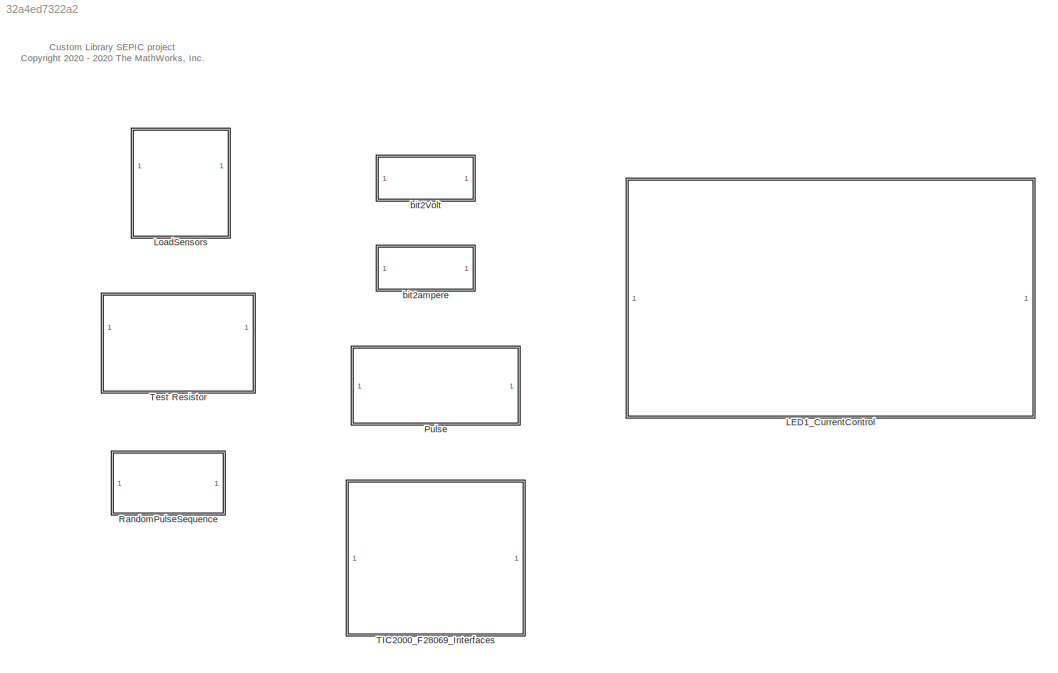
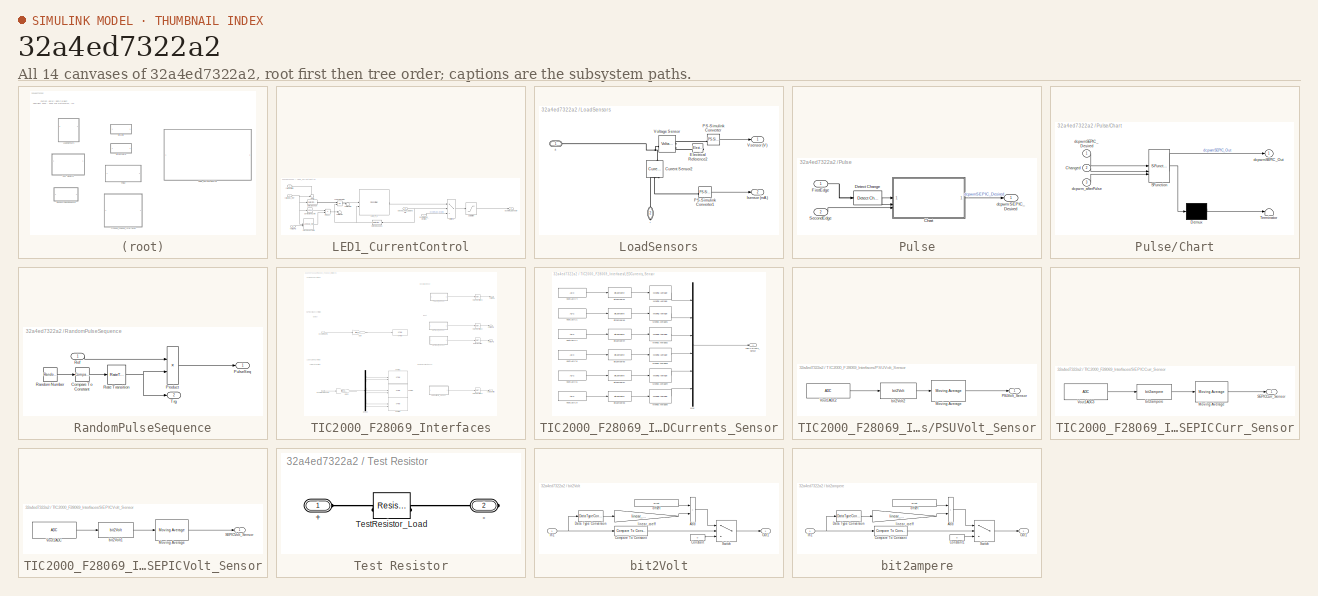
[diagram: thumbnail index - all 14 canvases of the model, root first then tree order]
MODEL slx_32a4ed7322a2
KIND library
CONFIG AbsTol = auto
CONFIG EnableMultiTasking = off
CONFIG FixedStep = auto
CONFIG MaxStep = auto
CONFIG MinStep = auto
CONFIG RelTol = 1e-3
CONFIG SampleTimeConstraint = Unconstrained
CONFIG SolverName = VariableStepAuto
CONFIG StartTime = 0.0
CONFIG StopTime = 10.0
BLOCK [SubSystem] LED1_CurrentControl
BLOCK [Lookup_n-D] LED1_CurrentControl/2-D Lookup Table
  BreakpointsForDimension1 = CurrCtrlr_IC_CurrBrkpnt
  BreakpointsForDimension2 = CurrCtrlr_IC_VoltBrkpnt
  Commented = on
  ExtrapMethod = Clip
  InputPortMap = u0,u1
  InternalRulePriority = Speed
  RndMeth = Simplest
  Table = CurrCtrlr_IC_Table
BLOCK [Reference] LED1_CurrentControl/Compare To Zero  REF=simulink/Logic and Bit
Operations/Compare
To Zero
  Commented = on
  SourceBlock = simulink/Logic and Bit\nOperations/Compare\nTo Zero
  SourceType = Compare To Zero
BLOCK [Reference] LED1_CurrentControl/Detect Change  REF=simulink/Logic and Bit
Operations/Detect
Change
  Commented = on
  SourceBlock = simulink/Logic and Bit\nOperations/Detect\nChange
  SourceType = Detect Change
BLOCK [Reference] LED1_CurrentControl/Detect Change1  REF=simulink/Logic and Bit
Operations/Detect
Change
  Commented = through
  SourceBlock = simulink/Logic and Bit\nOperations/Detect\nChange
  SourceType = Detect Change
BLOCK [Reference] LED1_CurrentControl/LED_PI_1  REF=slpidlib/PID Controller
  SourceBlock = slpidlib/PID Controller
  SourceType = PID 1dof
BLOCK [Logic] LED1_CurrentControl/Logical Operator
  AllPortsSameDT = off
  Commented = on
  Operator = OR
  OutDataTypeStr = boolean
BLOCK [Product] LED1_CurrentControl/Product
  Commented = on
BLOCK [Saturate] LED1_CurrentControl/Saturation
  AttributesFormatString = %<UpperLimit>\n%<LowerLimit>
  LowerLimit = 0
  UpperLimit = dcpwmLEDMax
BLOCK [Sum] LED1_CurrentControl/Sum
  Inputs = -+|
BLOCK [Switch] LED1_CurrentControl/Switch1
  Criteria = u2 > Threshold
  InputSameDT = off
  SaturateOnIntegerOverflow = off
BLOCK [Terminator] LED1_CurrentControl/Terminator
  Commented = on
BLOCK [Terminator] LED1_CurrentControl/Terminator1
  Commented = on
BLOCK [Inport] LED1_CurrentControl/closedLoopLEDEnable
  OutDataTypeStr = boolean
  Port = 3
  PortDimensions = 1
  SamplingMode = Sample based
  SignalType = real
  Unit = 1
BLOCK [Inport] LED1_CurrentControl/currLEDs_Ref
  OutDataTypeStr = single
  PortDimensions = [1 1]
  SamplingMode = Sample based
  SignalType = real
  Unit = mA
BLOCK [Inport] LED1_CurrentControl/currLEDstrips
  OutDataTypeStr = single
  Port = 2
  PortDimensions = [1 1]
  SamplingMode = Sample based
  SignalType = real
  Unit = mA
BLOCK [Inport] LED1_CurrentControl/dcpwmLED_Desired
  OutDataTypeStr = single
  Port = 4
  PortDimensions = [1 1]
  SamplingMode = Sample based
  SignalType = real
  Unit = 1
BLOCK [Outport] LED1_CurrentControl/dcpwmLEDvector
  OutDataTypeStr = single
  PortDimensions = 1
  SamplingMode = Sample based
  SignalType = real
  VectorParamsAs1DForOutWhenUnconnected = off
BLOCK [Inport] LED1_CurrentControl/voltSEPIC
  OutDataTypeStr = single
  Port = 5
  PortDimensions = 1
  SamplingMode = Sample based
  SignalType = real
  Unit = V
BLOCK [SubSystem] LoadSensors
BLOCK [PMIOPort] LoadSensors/+
  Side = Left
BLOCK [PMIOPort] LoadSensors/-
  NameLocation = left
  Port = 2
  Side = Right
BLOCK [Reference] LoadSensors/Current Sensor2  REF=fl_lib/Electrical/Electrical Sensors/Current Sensor
  NameLocation = left
  SourceBlock = fl_lib/Electrical/Electrical Sensors/Current Sensor
  SourceType = Current Sensor
BLOCK [Reference] LoadSensors/Electrical Reference2  REF=fl_lib/Electrical/Electrical Elements/Electrical Reference
  NameLocation = top
  SourceBlock = fl_lib/Electrical/Electrical Elements/Electrical Reference
  SourceType = Electrical Reference
BLOCK [Outport] LoadSensors/Isensor (mA)
  Port = 2
  Unit = mA
  VectorParamsAs1DForOutWhenUnconnected = off
BLOCK [Reference] LoadSensors/PS-Simulink Converter  REF=nesl_utility/PS-Simulink
Converter
  SourceBlock = nesl_utility/PS-Simulink\nConverter
  SourceType = PS-Simulink\nConverter
BLOCK [Reference] LoadSensors/PS-Simulink Converter1  REF=nesl_utility/PS-Simulink
Converter
  SourceBlock = nesl_utility/PS-Simulink\nConverter
  SourceType = PS-Simulink\nConverter
BLOCK [Reference] LoadSensors/Voltage Sensor  REF=fl_lib/Electrical/Electrical Sensors/Voltage Sensor
  SourceBlock = fl_lib/Electrical/Electrical Sensors/Voltage Sensor
  SourceType = Voltage Sensor
BLOCK [Outport] LoadSensors/Vsensor (V)
  Unit = V
  VectorParamsAs1DForOutWhenUnconnected = off
BLOCK [SubSystem] Pulse
BLOCK [SubSystem] Pulse/Chart
  BlockKeywords = __PRM__SERIALIZED__DATA__:Stateflow Chart,Stateflow Diagram
  ErrorFcn = Stateflow.Translate.translate
  PermitHierarchicalResolution = ExplicitOnly
  SFBlockType = Chart
  TreatAsAtomicUnit = on
BLOCK [Demux] Pulse/Chart/ Demux 
  Outputs = 1
BLOCK [S-Function] Pulse/Chart/ SFunction 
  EnableBusSupport = off
  FunctionName = sf_sfun
  Parameters = pulseDuration
  PortCounts = [3 2]
  SFcnIsStateOwnerBlock = off
  SFunctionDeploymentMode = off
  Tag = Stateflow S-Function 3
BLOCK [Terminator] Pulse/Chart/ Terminator 
BLOCK [Inport] Pulse/Chart/Changed
  Port = 2
BLOCK [Inport] Pulse/Chart/dcpwmSEPIC_Desired
BLOCK [Outport] Pulse/Chart/dcpwmSEPIC_Out
BLOCK [Inport] Pulse/Chart/dcpwm_afterPulse
  Port = 3
BLOCK [Reference] Pulse/Detect Change  REF=simulink/Logic and Bit
Operations/Detect
Change
  SourceBlock = simulink/Logic and Bit\nOperations/Detect\nChange
  SourceType = Detect Change
BLOCK [Inport] Pulse/FirstEdge
BLOCK [Inport] Pulse/SecondEdge
  Port = 2
BLOCK [Outport] Pulse/dcpwmSEPIC_Desired
BLOCK [SubSystem] RandomPulseSequence
BLOCK [Reference] RandomPulseSequence/Compare To Constant  REF=simulink/Logic and Bit
Operations/Compare
To Constant
  SourceBlock = simulink/Logic and Bit\nOperations/Compare\nTo Constant
  SourceType = Compare To Constant
BLOCK [Product] RandomPulseSequence/Product
BLOCK [Outport] RandomPulseSequence/PulseSeq
BLOCK [RandomNumber] RandomPulseSequence/Random Number
  Mean = 0.5
  SampleTime = sampleTime
  Seed = seed
BLOCK [RateTransition] RandomPulseSequence/Rate Transition
BLOCK [Inport] RandomPulseSequence/Ref
BLOCK [Outport] RandomPulseSequence/Trg
  Port = 2
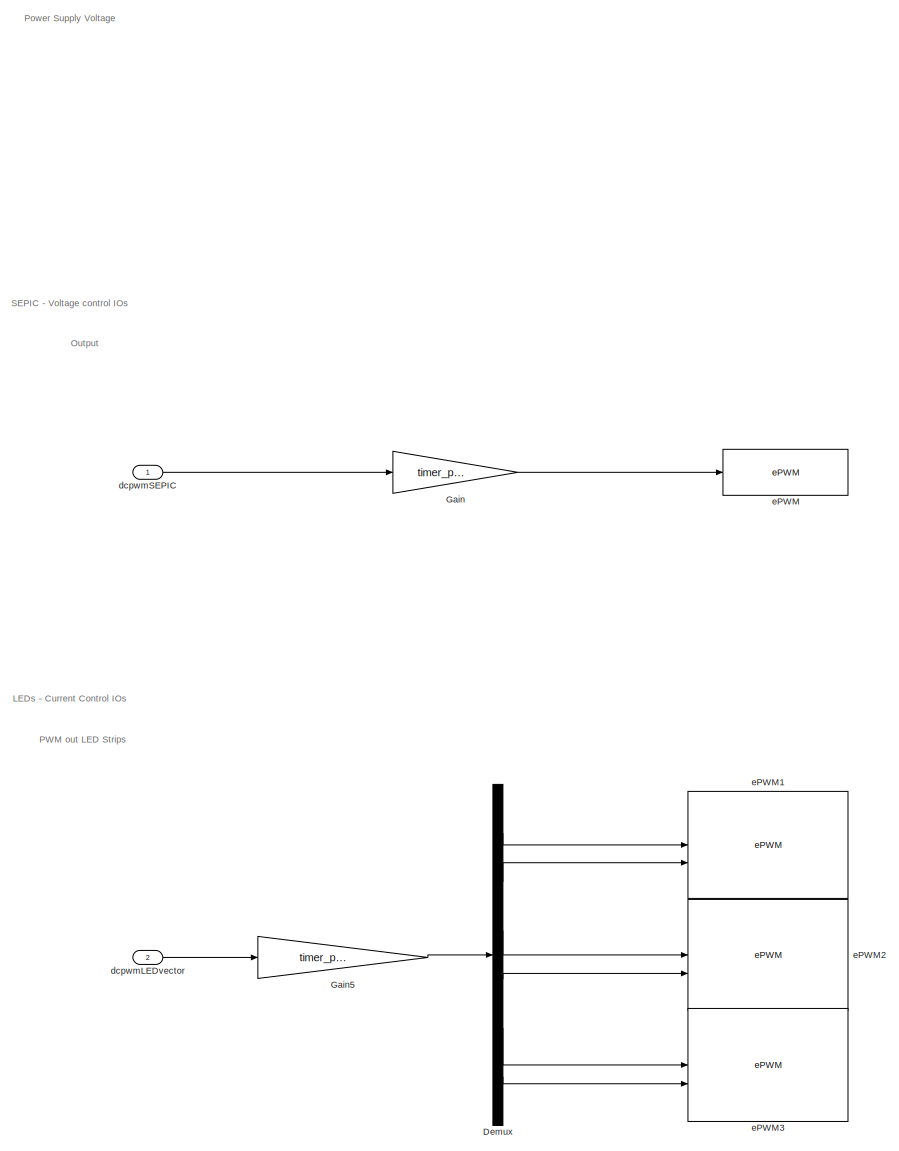
[diagram: TIC2000_F28069_Interfaces - part 1/2, left side, full height]
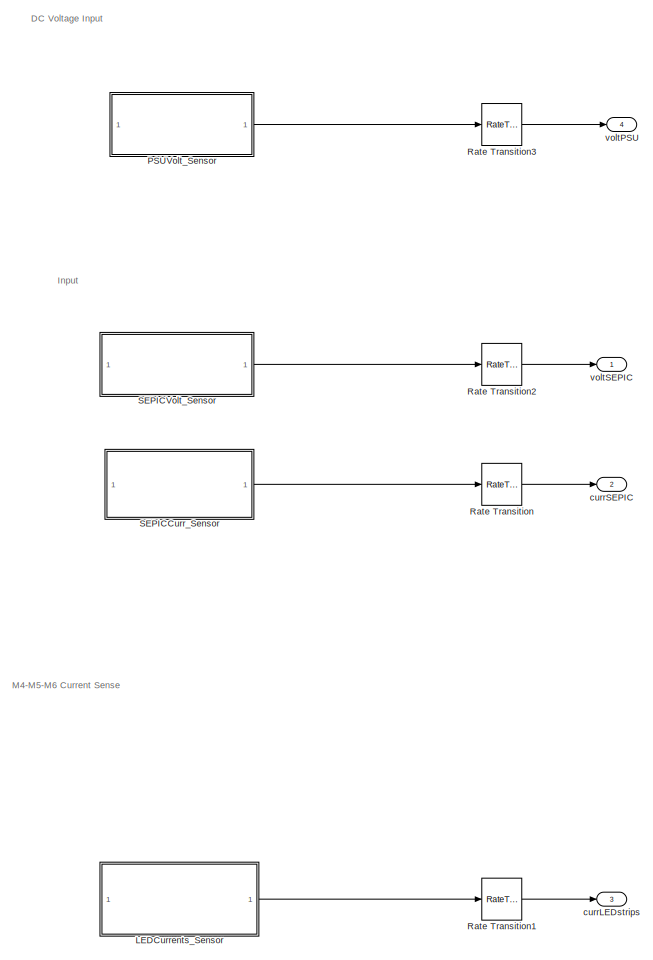
[diagram: TIC2000_F28069_Interfaces - part 2/2, right side, full height]
BLOCK [SubSystem] TIC2000_F28069_Interfaces
  SystemSampleTime = ts500us
  VariantControl = Var_Plant==1
BLOCK [Demux] TIC2000_F28069_Interfaces/Demux
  Outputs = 6
BLOCK [Gain] TIC2000_F28069_Interfaces/Gain
  Gain = timer_period_SEPIC
  OutDataTypeStr = int16
  OutMax = 70
  OutMin = 0
  RndMeth = Simplest
BLOCK [Gain] TIC2000_F28069_Interfaces/Gain5
  Gain = timer_period_LED
  OutDataTypeStr = int16
  ParamDataTypeStr = int16
  RndMeth = Simplest
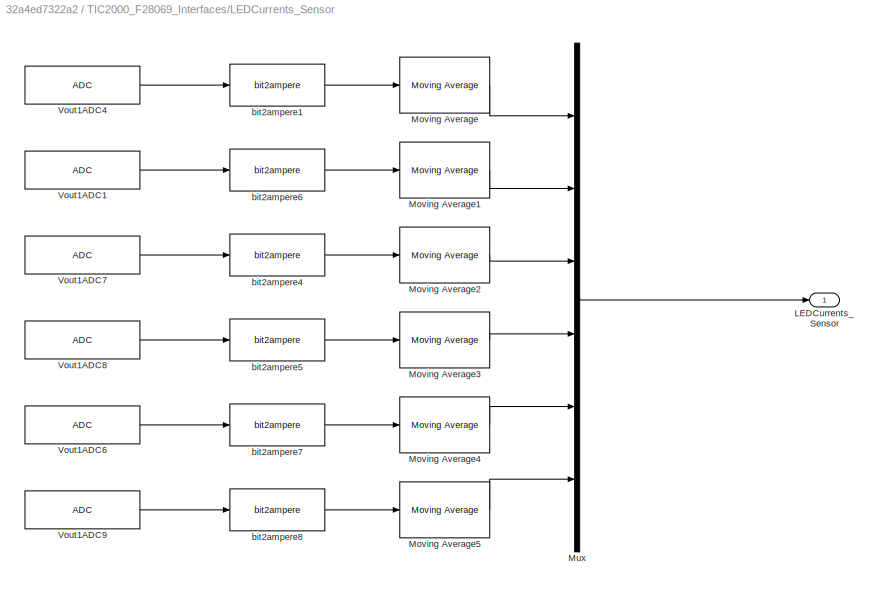
BLOCK [SubSystem] TIC2000_F28069_Interfaces/LEDCurrents_Sensor
  SystemSampleTime = ts500us
  TreatAsAtomicUnit = on
BLOCK [Outport] TIC2000_F28069_Interfaces/LEDCurrents_Sensor/LEDCurrents_Sensor
BLOCK [Reference] TIC2000_F28069_Interfaces/LEDCurrents_Sensor/Moving Average  REF=dspstat3/Moving
Average
  SourceBlock = dspstat3/Moving\nAverage
  SourceType = dsp.simulink.MovingAverage
BLOCK [Reference] TIC2000_F28069_Interfaces/LEDCurrents_Sensor/Moving Average1  REF=dspstat3/Moving
Average
  SourceBlock = dspstat3/Moving\nAverage
  SourceType = dsp.simulink.MovingAverage
BLOCK [Reference] TIC2000_F28069_Interfaces/LEDCurrents_Sensor/Moving Average2  REF=dspstat3/Moving
Average
  SourceBlock = dspstat3/Moving\nAverage
  SourceType = dsp.simulink.MovingAverage
BLOCK [Reference] TIC2000_F28069_Interfaces/LEDCurrents_Sensor/Moving Average3  REF=dspstat3/Moving
Average
  SourceBlock = dspstat3/Moving\nAverage
  SourceType = dsp.simulink.MovingAverage
BLOCK [Reference] TIC2000_F28069_Interfaces/LEDCurrents_Sensor/Moving Average4  REF=dspstat3/Moving
Average
  SourceBlock = dspstat3/Moving\nAverage
  SourceType = dsp.simulink.MovingAverage
BLOCK [Reference] TIC2000_F28069_Interfaces/LEDCurrents_Sensor/Moving Average5  REF=dspstat3/Moving
Average
  SourceBlock = dspstat3/Moving\nAverage
  SourceType = dsp.simulink.MovingAverage
BLOCK [Mux] TIC2000_F28069_Interfaces/LEDCurrents_Sensor/Mux
  DisplayOption = bar
  Inputs = 6
BLOCK [Reference] TIC2000_F28069_Interfaces/LEDCurrents_Sensor/Vout1ADC1  REF=c2802xlib/ADC
  SourceBlock = c2802xlib/ADC
  SourceType = ADC Type 3-5
  UserDataPersistent = on
BLOCK [Reference] TIC2000_F28069_Interfaces/LEDCurrents_Sensor/Vout1ADC4  REF=c2802xlib/ADC
  SourceBlock = c2802xlib/ADC
  SourceType = ADC Type 3-5
  UserDataPersistent = on
BLOCK [Reference] TIC2000_F28069_Interfaces/LEDCurrents_Sensor/Vout1ADC6  REF=c2802xlib/ADC
  SourceBlock = c2802xlib/ADC
  SourceType = ADC Type 3-5
  UserDataPersistent = on
BLOCK [Reference] TIC2000_F28069_Interfaces/LEDCurrents_Sensor/Vout1ADC7  REF=c2802xlib/ADC
  SourceBlock = c2802xlib/ADC
  SourceType = ADC Type 3-5
  UserDataPersistent = on
BLOCK [Reference] TIC2000_F28069_Interfaces/LEDCurrents_Sensor/Vout1ADC8  REF=c2802xlib/ADC
  SourceBlock = c2802xlib/ADC
  SourceType = ADC Type 3-5
  UserDataPersistent = on
BLOCK [Reference] TIC2000_F28069_Interfaces/LEDCurrents_Sensor/Vout1ADC9  REF=c2802xlib/ADC
  SourceBlock = c2802xlib/ADC
  SourceType = ADC Type 3-5
  UserDataPersistent = on
BLOCK [Reference] TIC2000_F28069_Interfaces/LEDCurrents_Sensor/bit2ampere1  REF=$bdroot/bit2ampere
  SourceBlock = $bdroot/bit2ampere
  SourceType = ADC Conversion utility
BLOCK [Reference] TIC2000_F28069_Interfaces/LEDCurrents_Sensor/bit2ampere4  REF=$bdroot/bit2ampere
  SourceBlock = $bdroot/bit2ampere
  SourceType = ADC Conversion utility
BLOCK [Reference] TIC2000_F28069_Interfaces/LEDCurrents_Sensor/bit2ampere5  REF=$bdroot/bit2ampere
  SourceBlock = $bdroot/bit2ampere
  SourceType = ADC Conversion utility
BLOCK [Reference] TIC2000_F28069_Interfaces/LEDCurrents_Sensor/bit2ampere6  REF=$bdroot/bit2ampere
  SourceBlock = $bdroot/bit2ampere
  SourceType = ADC Conversion utility
BLOCK [Reference] TIC2000_F28069_Interfaces/LEDCurrents_Sensor/bit2ampere7  REF=$bdroot/bit2ampere
  SourceBlock = $bdroot/bit2ampere
  SourceType = ADC Conversion utility
BLOCK [Reference] TIC2000_F28069_Interfaces/LEDCurrents_Sensor/bit2ampere8  REF=$bdroot/bit2ampere
  SourceBlock = $bdroot/bit2ampere
  SourceType = ADC Conversion utility
BLOCK [SubSystem] TIC2000_F28069_Interfaces/PSUVolt_Sensor
  SystemSampleTime = ts100ms
  TreatAsAtomicUnit = on
BLOCK [Reference] TIC2000_F28069_Interfaces/PSUVolt_Sensor/Moving Average  REF=dspstat3/Moving
Average
  SourceBlock = dspstat3/Moving\nAverage
  SourceType = dsp.simulink.MovingAverage
BLOCK [Outport] TIC2000_F28069_Interfaces/PSUVolt_Sensor/PSUVolt_Sensor
BLOCK [Reference] TIC2000_F28069_Interfaces/PSUVolt_Sensor/Vout1ADC2  REF=c2802xlib/ADC
  SourceBlock = c2802xlib/ADC
  SourceType = ADC Type 3-5
  UserDataPersistent = on
BLOCK [Reference] TIC2000_F28069_Interfaces/PSUVolt_Sensor/bit2Volt2  REF=$bdroot/bit2Volt
  SourceBlock = $bdroot/bit2Volt
  SourceType = ADC Conversion utility
BLOCK [RateTransition] TIC2000_F28069_Interfaces/Rate Transition
  Deterministic = off
BLOCK [RateTransition] TIC2000_F28069_Interfaces/Rate Transition1
  Deterministic = off
BLOCK [RateTransition] TIC2000_F28069_Interfaces/Rate Transition2
  Deterministic = off
BLOCK [RateTransition] TIC2000_F28069_Interfaces/Rate Transition3
  Deterministic = off
BLOCK [SubSystem] TIC2000_F28069_Interfaces/SEPICCurr_Sensor
  SystemSampleTime = ts10ms
  TreatAsAtomicUnit = on
BLOCK [Reference] TIC2000_F28069_Interfaces/SEPICCurr_Sensor/Moving Average  REF=dspstat3/Moving
Average
  SourceBlock = dspstat3/Moving\nAverage
  SourceType = dsp.simulink.MovingAverage
BLOCK [Outport] TIC2000_F28069_Interfaces/SEPICCurr_Sensor/SEPICCurr_Sensor
BLOCK [Reference] TIC2000_F28069_Interfaces/SEPICCurr_Sensor/Vout1ADC3  REF=c2802xlib/ADC
  SourceBlock = c2802xlib/ADC
  SourceType = ADC Type 3-5
  UserDataPersistent = on
BLOCK [Reference] TIC2000_F28069_Interfaces/SEPICCurr_Sensor/bit2ampere  REF=$bdroot/bit2ampere
  SourceBlock = $bdroot/bit2ampere
  SourceType = ADC Conversion utility
BLOCK [SubSystem] TIC2000_F28069_Interfaces/SEPICVolt_Sensor
  SystemSampleTime = ts500us
  TreatAsAtomicUnit = on
BLOCK [Reference] TIC2000_F28069_Interfaces/SEPICVolt_Sensor/Moving Average  REF=dspstat3/Moving
Average
  SourceBlock = dspstat3/Moving\nAverage
  SourceType = dsp.simulink.MovingAverage
BLOCK [Outport] TIC2000_F28069_Interfaces/SEPICVolt_Sensor/SEPICVolt_Sensor
BLOCK [Reference] TIC2000_F28069_Interfaces/SEPICVolt_Sensor/Vout1ADC  REF=c2802xlib/ADC
  SourceBlock = c2802xlib/ADC
  SourceType = ADC Type 3-5
  UserDataPersistent = on
BLOCK [Reference] TIC2000_F28069_Interfaces/SEPICVolt_Sensor/bit2Volt1  REF=$bdroot/bit2Volt
  SourceBlock = $bdroot/bit2Volt
  SourceType = ADC Conversion utility
BLOCK [Outport] TIC2000_F28069_Interfaces/currLEDstrips
  OutDataTypeStr = single
  Port = 3
  PortDimensions = 6
  Unit = mA
BLOCK [Outport] TIC2000_F28069_Interfaces/currSEPIC
  Port = 2
  Unit = mA
  VectorParamsAs1DForOutWhenUnconnected = off
BLOCK [Inport] TIC2000_F28069_Interfaces/dcpwmLEDvector
  Port = 2
  Unit = 1
BLOCK [Inport] TIC2000_F28069_Interfaces/dcpwmSEPIC
  Unit = 1
BLOCK [Reference] TIC2000_F28069_Interfaces/ePWM  REF=c2802xlib/ePWM
  SourceBlock = c2802xlib/ePWM
  SourceType = ePWM Type 1-4
BLOCK [Reference] TIC2000_F28069_Interfaces/ePWM1  REF=c2802xlib/ePWM
  SourceBlock = c2802xlib/ePWM
  SourceType = ePWM Type 1-4
BLOCK [Reference] TIC2000_F28069_Interfaces/ePWM2  REF=c2802xlib/ePWM
  SourceBlock = c2802xlib/ePWM
  SourceType = ePWM Type 1-4
BLOCK [Reference] TIC2000_F28069_Interfaces/ePWM3  REF=c2802xlib/ePWM
  SourceBlock = c2802xlib/ePWM
  SourceType = ePWM Type 1-4
BLOCK [Outport] TIC2000_F28069_Interfaces/voltPSU
  Port = 4
  Unit = V
  VectorParamsAs1DForOutWhenUnconnected = off
BLOCK [Outport] TIC2000_F28069_Interfaces/voltSEPIC
  Unit = V
  VectorParamsAs1DForOutWhenUnconnected = off
BLOCK [SubSystem] Test Resistor
  VariantControl = Resistor
BLOCK [PMIOPort] Test Resistor/+
  Side = Left
BLOCK [PMIOPort] Test Resistor/-
  Port = 2
  Side = Right
BLOCK [Reference] Test Resistor/TestResistor_Load  REF=ee_lib/Passive/Resistor
  SourceBlock = ee_lib/Passive/Resistor
  SourceType = Resistor
BLOCK [SubSystem] bit2Volt
BLOCK [Sum] bit2Volt/Add
  IconShape = rectangular
BLOCK [Reference] bit2Volt/Compare To Constant  REF=simulink/Logic and Bit
Operations/Compare
To Constant
  SourceBlock = simulink/Logic and Bit\nOperations/Compare\nTo Constant
  SourceType = Compare To Constant
BLOCK [Constant] bit2Volt/Constant
  OutDataTypeStr = single
  Value = 0
BLOCK [DataTypeConversion] bit2Volt/Data Type Conversion
  OutDataTypeStr = single
  RndMeth = Floor
  SaturateOnIntegerOverflow = off
BLOCK [Inport] bit2Volt/In1
BLOCK [Outport] bit2Volt/Out1
BLOCK [Switch] bit2Volt/Switch
  Criteria = u2 > Threshold
  InputSameDT = off
  SaturateOnIntegerOverflow = off
BLOCK [Gain] bit2Volt/linear_coeff
  Gain = linear_coeff
BLOCK [Constant] bit2Volt/offset
  OutDataTypeStr = single
  Value = offset
BLOCK [SubSystem] bit2ampere
BLOCK [Sum] bit2ampere/Add
  IconShape = rectangular
BLOCK [Reference] bit2ampere/Compare To Constant  REF=simulink/Logic and Bit
Operations/Compare
To Constant
  SourceBlock = simulink/Logic and Bit\nOperations/Compare\nTo Constant
  SourceType = Compare To Constant
BLOCK [Constant] bit2ampere/Constant1
  OutDataTypeStr = single
  Value = 0
BLOCK [DataTypeConversion] bit2ampere/Data Type Conversion
  OutDataTypeStr = single
  RndMeth = Floor
  SaturateOnIntegerOverflow = off
BLOCK [Inport] bit2ampere/In1
BLOCK [Outport] bit2ampere/Out1
BLOCK [Switch] bit2ampere/Switch
  Criteria = u2 > Threshold
  InputSameDT = off
  SaturateOnIntegerOverflow = off
BLOCK [Gain] bit2ampere/linear_coeff
  Gain = linear_coeff
BLOCK [Constant] bit2ampere/offset
  OutDataTypeStr = single
  Value = offset
ANNOTATION (root): Custom Library SEPIC project <copyright redacted>
ANNOTATION TIC2000_F28069_Interfaces: DC Voltage Input
ANNOTATION TIC2000_F28069_Interfaces: Input
ANNOTATION TIC2000_F28069_Interfaces: LEDs - Current Control IOs
ANNOTATION TIC2000_F28069_Interfaces: M4-M5-M6 Current Sense
ANNOTATION TIC2000_F28069_Interfaces: Output
ANNOTATION TIC2000_F28069_Interfaces: PWM out LED Strips
ANNOTATION TIC2000_F28069_Interfaces: Power Supply Voltage
ANNOTATION TIC2000_F28069_Interfaces: SEPIC - Voltage control IOs
LINE LED1_CurrentControl/2-D Lookup Table:1 -> LED1_CurrentControl/Product:2
LINE LED1_CurrentControl/Compare To Zero:1 -> LED1_CurrentControl/Product:1
NET LED1_CurrentControl/Detect Change1:1 -> LED1_CurrentControl/LED_PI_1:2, LED1_CurrentControl/Logical Operator:2
LINE LED1_CurrentControl/Detect Change:1 -> LED1_CurrentControl/Logical Operator:1
LINE LED1_CurrentControl/LED_PI_1:1 -> LED1_CurrentControl/Switch1:1
LINE LED1_CurrentControl/Logical Operator:1 -> LED1_CurrentControl/Terminator1:1
LINE LED1_CurrentControl/Product:1 -> LED1_CurrentControl/Terminator:1
LINE LED1_CurrentControl/Saturation:1 -> LED1_CurrentControl/dcpwmLEDvector:1
LINE LED1_CurrentControl/Sum:1 -> LED1_CurrentControl/LED_PI_1:1
LINE LED1_CurrentControl/Switch1:1 -> LED1_CurrentControl/Saturation:1
NET LED1_CurrentControl/closedLoopLEDEnable:1 -> LED1_CurrentControl/Detect Change1:1, LED1_CurrentControl/Switch1:2
NET LED1_CurrentControl/currLEDs_Ref:1 -> LED1_CurrentControl/2-D Lookup Table:1, LED1_CurrentControl/Compare To Zero:1, LED1_CurrentControl/Detect Change:1, LED1_CurrentControl/Sum:2
LINE LED1_CurrentControl/currLEDstrips:1 -> LED1_CurrentControl/Sum:1
LINE LED1_CurrentControl/dcpwmLED_Desired:1 -> LED1_CurrentControl/Switch1:3
LINE LED1_CurrentControl/voltSEPIC:1 -> LED1_CurrentControl/2-D Lookup Table:2
LINE LoadSensors/PS-Simulink Converter1:1 -> LoadSensors/Isensor (mA):1
LINE LoadSensors/PS-Simulink Converter:1 -> LoadSensors/Vsensor (V):1
LINE Pulse/Chart:1 -> Pulse/dcpwmSEPIC_Desired:1
LINE Pulse/Detect Change:1 -> Pulse/Chart:2
NET Pulse/FirstEdge:1 -> Pulse/Chart:1, Pulse/Detect Change:1
LINE Pulse/SecondEdge:1 -> Pulse/Chart:3
LINE RandomPulseSequence/Compare To Constant:1 -> RandomPulseSequence/Rate Transition:1
LINE RandomPulseSequence/Product:1 -> RandomPulseSequence/PulseSeq:1
LINE RandomPulseSequence/Random Number:1 -> RandomPulseSequence/Compare To Constant:1
NET RandomPulseSequence/Rate Transition:1 -> RandomPulseSequence/Product:2, RandomPulseSequence/Trg:1
LINE RandomPulseSequence/Ref:1 -> RandomPulseSequence/Product:1
LINE TIC2000_F28069_Interfaces/Demux:1 -> TIC2000_F28069_Interfaces/ePWM1:1
LINE TIC2000_F28069_Interfaces/Demux:2 -> TIC2000_F28069_Interfaces/ePWM1:2
LINE TIC2000_F28069_Interfaces/Demux:3 -> TIC2000_F28069_Interfaces/ePWM2:1
LINE TIC2000_F28069_Interfaces/Demux:4 -> TIC2000_F28069_Interfaces/ePWM2:2
LINE TIC2000_F28069_Interfaces/Demux:5 -> TIC2000_F28069_Interfaces/ePWM3:1
LINE TIC2000_F28069_Interfaces/Demux:6 -> TIC2000_F28069_Interfaces/ePWM3:2
LINE TIC2000_F28069_Interfaces/Gain5:1 -> TIC2000_F28069_Interfaces/Demux:1
LINE TIC2000_F28069_Interfaces/Gain:1 -> TIC2000_F28069_Interfaces/ePWM:1
LINE TIC2000_F28069_Interfaces/LEDCurrents_Sensor/Moving Average1:1 -> TIC2000_F28069_Interfaces/LEDCurrents_Sensor/Mux:2
LINE TIC2000_F28069_Interfaces/LEDCurrents_Sensor/Moving Average2:1 -> TIC2000_F28069_Interfaces/LEDCurrents_Sensor/Mux:3
LINE TIC2000_F28069_Interfaces/LEDCurrents_Sensor/Moving Average3:1 -> TIC2000_F28069_Interfaces/LEDCurrents_Sensor/Mux:4
LINE TIC2000_F28069_Interfaces/LEDCurrents_Sensor/Moving Average4:1 -> TIC2000_F28069_Interfaces/LEDCurrents_Sensor/Mux:5
LINE TIC2000_F28069_Interfaces/LEDCurrents_Sensor/Moving Average5:1 -> TIC2000_F28069_Interfaces/LEDCurrents_Sensor/Mux:6
LINE TIC2000_F28069_Interfaces/LEDCurrents_Sensor/Moving Average:1 -> TIC2000_F28069_Interfaces/LEDCurrents_Sensor/Mux:1
LINE TIC2000_F28069_Interfaces/LEDCurrents_Sensor/Mux:1 -> TIC2000_F28069_Interfaces/LEDCurrents_Sensor/LEDCurrents_Sensor:1
LINE TIC2000_F28069_Interfaces/LEDCurrents_Sensor/Vout1ADC1:1 -> TIC2000_F28069_Interfaces/LEDCurrents_Sensor/bit2ampere6:1
LINE TIC2000_F28069_Interfaces/LEDCurrents_Sensor/Vout1ADC4:1 -> TIC2000_F28069_Interfaces/LEDCurrents_Sensor/bit2ampere1:1
LINE TIC2000_F28069_Interfaces/LEDCurrents_Sensor/Vout1ADC6:1 -> TIC2000_F28069_Interfaces/LEDCurrents_Sensor/bit2ampere7:1
LINE TIC2000_F28069_Interfaces/LEDCurrents_Sensor/Vout1ADC7:1 -> TIC2000_F28069_Interfaces/LEDCurrents_Sensor/bit2ampere4:1
LINE TIC2000_F28069_Interfaces/LEDCurrents_Sensor/Vout1ADC8:1 -> TIC2000_F28069_Interfaces/LEDCurrents_Sensor/bit2ampere5:1
LINE TIC2000_F28069_Interfaces/LEDCurrents_Sensor/Vout1ADC9:1 -> TIC2000_F28069_Interfaces/LEDCurrents_Sensor/bit2ampere8:1
LINE TIC2000_F28069_Interfaces/LEDCurrents_Sensor/bit2ampere1:1 -> TIC2000_F28069_Interfaces/LEDCurrents_Sensor/Moving Average:1
LINE TIC2000_F28069_Interfaces/LEDCurrents_Sensor/bit2ampere4:1 -> TIC2000_F28069_Interfaces/LEDCurrents_Sensor/Moving Average2:1
LINE TIC2000_F28069_Interfaces/LEDCurrents_Sensor/bit2ampere5:1 -> TIC2000_F28069_Interfaces/LEDCurrents_Sensor/Moving Average3:1
LINE TIC2000_F28069_Interfaces/LEDCurrents_Sensor/bit2ampere6:1 -> TIC2000_F28069_Interfaces/LEDCurrents_Sensor/Moving Average1:1
LINE TIC2000_F28069_Interfaces/LEDCurrents_Sensor/bit2ampere7:1 -> TIC2000_F28069_Interfaces/LEDCurrents_Sensor/Moving Average4:1
LINE TIC2000_F28069_Interfaces/LEDCurrents_Sensor/bit2ampere8:1 -> TIC2000_F28069_Interfaces/LEDCurrents_Sensor/Moving Average5:1
LINE TIC2000_F28069_Interfaces/LEDCurrents_Sensor:1 -> TIC2000_F28069_Interfaces/Rate Transition1:1
LINE TIC2000_F28069_Interfaces/PSUVolt_Sensor/Moving Average:1 -> TIC2000_F28069_Interfaces/PSUVolt_Sensor/PSUVolt_Sensor:1
LINE TIC2000_F28069_Interfaces/PSUVolt_Sensor/Vout1ADC2:1 -> TIC2000_F28069_Interfaces/PSUVolt_Sensor/bit2Volt2:1
LINE TIC2000_F28069_Interfaces/PSUVolt_Sensor/bit2Volt2:1 -> TIC2000_F28069_Interfaces/PSUVolt_Sensor/Moving Average:1
LINE TIC2000_F28069_Interfaces/PSUVolt_Sensor:1 -> TIC2000_F28069_Interfaces/Rate Transition3:1
LINE TIC2000_F28069_Interfaces/Rate Transition1:1 -> TIC2000_F28069_Interfaces/currLEDstrips:1
LINE TIC2000_F28069_Interfaces/Rate Transition2:1 -> TIC2000_F28069_Interfaces/voltSEPIC:1
LINE TIC2000_F28069_Interfaces/Rate Transition3:1 -> TIC2000_F28069_Interfaces/voltPSU:1
LINE TIC2000_F28069_Interfaces/Rate Transition:1 -> TIC2000_F28069_Interfaces/currSEPIC:1
LINE TIC2000_F28069_Interfaces/SEPICCurr_Sensor/Moving Average:1 -> TIC2000_F28069_Interfaces/SEPICCurr_Sensor/SEPICCurr_Sensor:1
LINE TIC2000_F28069_Interfaces/SEPICCurr_Sensor/Vout1ADC3:1 -> TIC2000_F28069_Interfaces/SEPICCurr_Sensor/bit2ampere:1
LINE TIC2000_F28069_Interfaces/SEPICCurr_Sensor/bit2ampere:1 -> TIC2000_F28069_Interfaces/SEPICCurr_Sensor/Moving Average:1
LINE TIC2000_F28069_Interfaces/SEPICCurr_Sensor:1 -> TIC2000_F28069_Interfaces/Rate Transition:1
LINE TIC2000_F28069_Interfaces/SEPICVolt_Sensor/Moving Average:1 -> TIC2000_F28069_Interfaces/SEPICVolt_Sensor/SEPICVolt_Sensor:1
LINE TIC2000_F28069_Interfaces/SEPICVolt_Sensor/Vout1ADC:1 -> TIC2000_F28069_Interfaces/SEPICVolt_Sensor/bit2Volt1:1
LINE TIC2000_F28069_Interfaces/SEPICVolt_Sensor/bit2Volt1:1 -> TIC2000_F28069_Interfaces/SEPICVolt_Sensor/Moving Average:1
LINE TIC2000_F28069_Interfaces/SEPICVolt_Sensor:1 -> TIC2000_F28069_Interfaces/Rate Transition2:1
LINE TIC2000_F28069_Interfaces/dcpwmLEDvector:1 -> TIC2000_F28069_Interfaces/Gain5:1
LINE TIC2000_F28069_Interfaces/dcpwmSEPIC:1 -> TIC2000_F28069_Interfaces/Gain:1
LINE bit2Volt/Add:1 -> bit2Volt/Switch:1
LINE bit2Volt/Compare To Constant:1 -> bit2Volt/Switch:2
LINE bit2Volt/Constant:1 -> bit2Volt/Switch:3
LINE bit2Volt/Data Type Conversion:1 -> bit2Volt/linear_coeff:1
NET bit2Volt/In1:1 -> bit2Volt/Compare To Constant:1, bit2Volt/Data Type Conversion:1
LINE bit2Volt/Switch:1 -> bit2Volt/Out1:1
LINE bit2Volt/linear_coeff:1 -> bit2Volt/Add:2
LINE bit2Volt/offset:1 -> bit2Volt/Add:1
LINE bit2ampere/Add:1 -> bit2ampere/Switch:1
LINE bit2ampere/Compare To Constant:1 -> bit2ampere/Switch:2
LINE bit2ampere/Constant1:1 -> bit2ampere/Switch:3
LINE bit2ampere/Data Type Conversion:1 -> bit2ampere/linear_coeff:1
NET bit2ampere/In1:1 -> bit2ampere/Compare To Constant:1, bit2ampere/Data Type Conversion:1
LINE bit2ampere/Switch:1 -> bit2ampere/Out1:1
LINE bit2ampere/linear_coeff:1 -> bit2ampere/Add:2
LINE bit2ampere/offset:1 -> bit2ampere/Add:1
PNET net1: LoadSensors/+:RConn1 -- LoadSensors/Current Sensor2:LConn1 -- LoadSensors/Voltage Sensor:LConn1
PLINE LoadSensors/-:RConn1 -- LoadSensors/Current Sensor2:RConn2
PLINE LoadSensors/Current Sensor2:RConn1 -- LoadSensors/PS-Simulink Converter1:LConn1
PLINE LoadSensors/Electrical Reference2:LConn1 -- LoadSensors/Voltage Sensor:RConn2
PLINE LoadSensors/PS-Simulink Converter:LConn1 -- LoadSensors/Voltage Sensor:RConn1
PLINE Test Resistor/+:RConn1 -- Test Resistor/TestResistor_Load:LConn1
PLINE Test Resistor/-:RConn1 -- Test Resistor/TestResistor_Load:RConn1
note: NET lines group one-source signal fan-out (src -> all destinations, sorted); 1:1 wires keep LINE; PNET lines group multi-terminal physical nets as a canonical sorted terminal list (undirected conserving connections); 2-terminal nets keep the pairwise PLINE form
CHART Pulse/Chart states=3 transitions=4
  STATE_LABEL 'In\nen: dcpwmSEPIC_Out =0;'
  STATE_LABEL 'Out\nen: dcpwmSEPIC_Out =dcpwmSEPIC_Desired;'
  STATE_LABEL 'In1\nen: dcpwmSEPIC_Out =dcpwm_afterPulse;'
CHART  states=0 transitions=0
